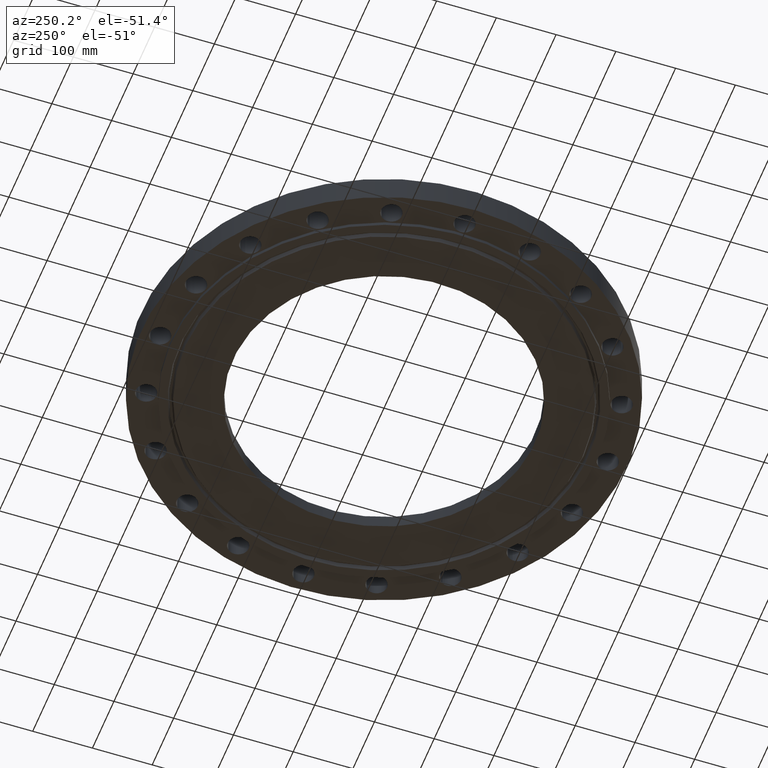
[diagram: clean part render]
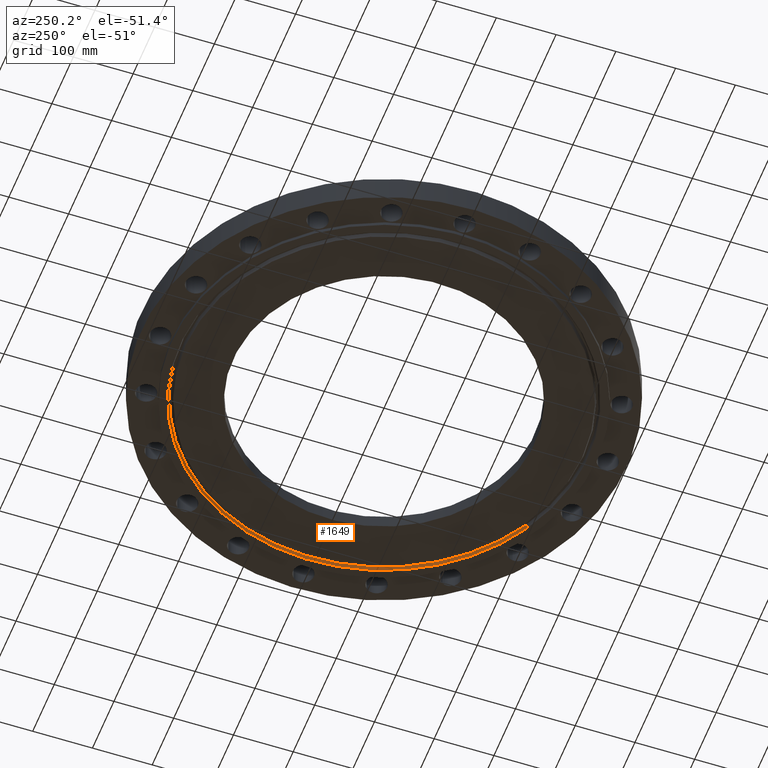
[diagram: same view with one face highlighted and labeled with its STEP entity id]
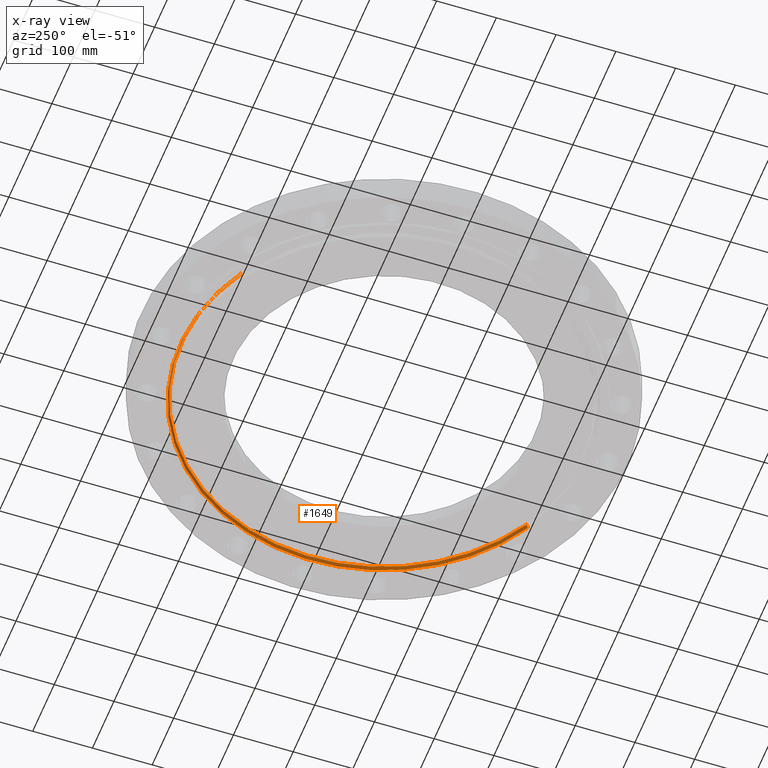
[diagram: x-ray of the same camera — body ghosted, the highlighted face saturated]
A machine part, auxiliary view. The second image highlights one B-rep face of the part: STEP entity #1649.
The next image is the same camera in x-ray: the body ghosted, the highlighted face saturated — about 0% of this face is hidden behind the body in this view.
In plain terms, the highlighted conical surface has half-angle 23 deg.
Its self-contained STEP definition (entity closure, byte-faithful):
#220=AXIS2_PLACEMENT_3D('Circle Axis2P3D',#218,#219,$) ;
#1622=AXIS2_PLACEMENT_3D('Cone Axis2P3D',#1619,#1620,#1621) ;
#1633=AXIS2_PLACEMENT_3D('Circle Axis2P3D',#1631,#1632,$) ;
#213=CARTESIAN_POINT('Vertex',(6.43478965098,-11.7788034479,-0.250000000001)) ;
#215=CARTESIAN_POINT('Vertex',(-6.43478965098,11.7788034479,-0.250000000001)) ;
#218=CARTESIAN_POINT('Axis2P3D Location',(-5.59482469102E-016,-1.1189649382E-015,-0.250000000001)) ;
#1619=CARTESIAN_POINT('Axis2P3D Location',(0.,0.,-0.0190396522348)) ;
#1624=CARTESIAN_POINT('Line Origine',(6.41128896589,-11.7357857324,-0.134519826118)) ;
#1628=CARTESIAN_POINT('Vertex',(6.3877882808,-11.6927680169,-0.0190396522348)) ;
#1631=CARTESIAN_POINT('Axis2P3D Location',(0.,0.,-0.0190396522348)) ;
#1635=CARTESIAN_POINT('Vertex',(-6.3877882808,11.6927680169,-0.0190396522348)) ;
#1638=CARTESIAN_POINT('Line Origine',(-6.41128896589,11.7357857324,-0.134519826118)) ;
#219=DIRECTION('Axis2P3D Direction',(0.,0.,-0.0393700787402)) ;
#1620=DIRECTION('Axis2P3D Direction',(-0.,-0.,-0.0393700787402)) ;
#1621=DIRECTION('Axis2P3D XDirection',(0.0188750212049,-0.0345504945626,0.)) ;
#1625=DIRECTION('Vector Direction',(0.00737505833565,-0.0134999537303,-0.0362403485611)) ;
#1632=DIRECTION('Axis2P3D Direction',(0.,0.,-0.0393700787402)) ;
#1639=DIRECTION('Vector Direction',(-0.00737505833565,0.0134999537303,-0.0362403485611)) ;
#1626=VECTOR('Line Direction',#1625,0.0393700787402) ;
#1640=VECTOR('Line Direction',#1639,0.0393700787402) ;
#1644=ORIENTED_EDGE('',*,*,#222,.T.) ;
#1645=ORIENTED_EDGE('',*,*,#1630,.T.) ;
#1646=ORIENTED_EDGE('',*,*,#1637,.T.) ;
#1647=ORIENTED_EDGE('',*,*,#1642,.F.) ;
#1649=ADVANCED_FACE('PartBody',(#1648),#1623,.F.) ;
#221=CIRCLE('generated circle',#220,13.4218750001) ;
#1634=CIRCLE('generated circle',#1633,13.3238381489) ;
#1623=CONICAL_SURFACE('Cone',#1622,13.3238381489,0.401425727959) ;
#222=EDGE_CURVE('',#216,#214,#221,.T.) ;
#1630=EDGE_CURVE('',#214,#1629,#1627,.F.) ;
#1637=EDGE_CURVE('',#1629,#1636,#1634,.F.) ;
#1642=EDGE_CURVE('',#216,#1636,#1641,.F.) ;
#1643=EDGE_LOOP('',(#1644,#1645,#1646,#1647)) ;
#1648=FACE_OUTER_BOUND('',#1643,.T.) ;
#1627=LINE('Line',#1624,#1626) ;
#1641=LINE('Line',#1638,#1640) ;
#214=VERTEX_POINT('',#213) ;
#216=VERTEX_POINT('',#215) ;
#1629=VERTEX_POINT('',#1628) ;
#1636=VERTEX_POINT('',#1635) ;